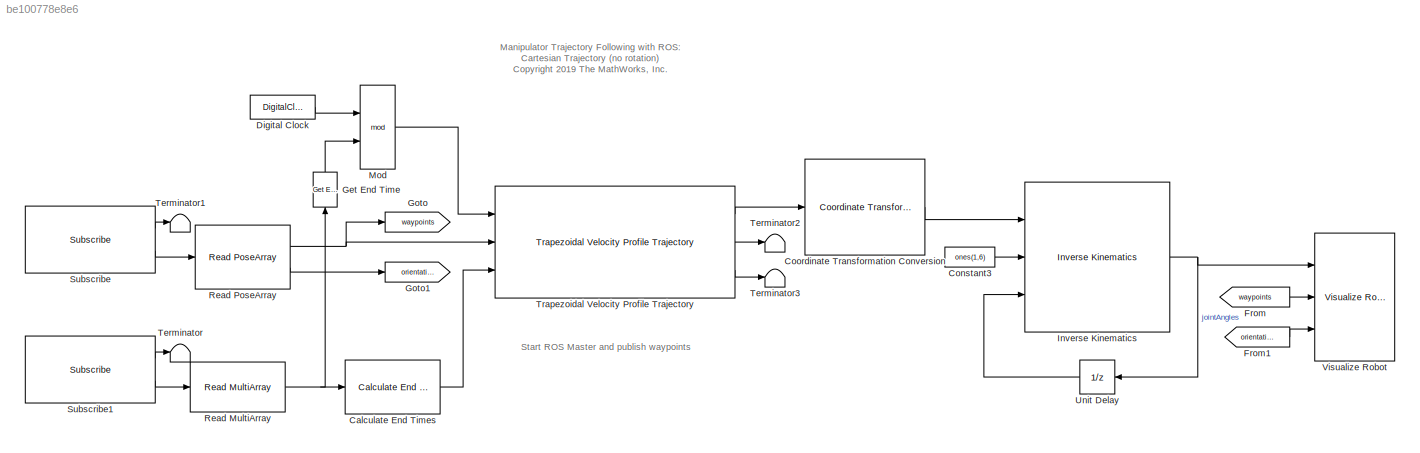
MODEL slx_be100778e8e6
KIND model
CONFIG AbsTol = auto
CONFIG EnableMultiTasking = off
CONFIG FixedStep = auto
CONFIG MaxStep = auto
CONFIG MinStep = auto
CONFIG PreLoadFcn = createWaypointData;
CONFIG RelTol = 1e-3
CONFIG SampleTimeConstraint = Unconstrained
CONFIG Solver = FixedStepAuto
CONFIG SolverName = FixedStepAuto
CONFIG StartTime = 0.0
CONFIG StopTime = inf
BLOCK [Reference] Calculate End Times  REF=trajExampleUtils/Calculate End Times
  Ports = [1, 1]
  SourceBlock = trajExampleUtils/Calculate End Times
  SourceProductBaseCode = SL
  SourceProductName = Simulink
  SourceType = Calculate End Times
BLOCK [Constant] Constant3
  Value = ones(1,6)
  VectorParams1D = off
BLOCK [Reference] Coordinate Transformation Conversion  REF=robotcorelib/Coordinate Transformation Conversion
  Ports = [1, 1]
  SourceBlock = robotcorelib/Coordinate Transformation Conversion
  SourceProductBaseCode = RO
  SourceProductName = Robotics System Toolbox
  SourceType = robotics.slcore.internal.block.CoordinateTransformationConversion
BLOCK [DigitalClock] Digital Clock
  SampleTime = ts
BLOCK [From] From
  GotoTag = waypoints
BLOCK [From] From1
  GotoTag = orientations
BLOCK [Reference] Get End Time  REF=trajExampleUtils/Get End Time
  Ports = [1, 1]
  SourceBlock = trajExampleUtils/Get End Time
  SourceProductBaseCode = SL
  SourceProductName = Simulink
  SourceType = Get End Time
BLOCK [Goto] Goto
  GotoTag = waypoints
BLOCK [Goto] Goto1
  GotoTag = orientations
BLOCK [Reference] Inverse Kinematics  REF=robotmaniplib/Inverse Kinematics
  Ports = [3, 1]
  SourceBlock = robotmaniplib/Inverse Kinematics
  SourceProductBaseCode = RO
  SourceProductName = Robotics System Toolbox
  SourceType = Inverse Kinematics
BLOCK [Math] Mod
  Operator = mod
  Ports = [2, 1]
BLOCK [Reference] Read MultiArray  REF=trajExampleUtils/Read MultiArray
  Ports = [1, 1]
  SourceBlock = trajExampleUtils/Read MultiArray
  SourceProductBaseCode = SL
  SourceProductName = Simulink
  SourceType = Read MultiArray
BLOCK [Reference] Read PoseArray  REF=trajExampleUtils/Read PoseArray
  Ports = [1, 2]
  SourceBlock = trajExampleUtils/Read PoseArray
  SourceType = Read PoseArray
BLOCK [Reference] Subscribe  REF=robotlib/Subscribe
  Ports = [0, 2]
  SourceBlock = robotlib/Subscribe
  SourceProductBaseCode = RO
  SourceProductName = Robotics System Toolbox
  SourceType = ROS Subscribe
BLOCK [Reference] Subscribe1  REF=robotlib/Subscribe
  Ports = [0, 2]
  SourceBlock = robotlib/Subscribe
  SourceProductBaseCode = RO
  SourceProductName = Robotics System Toolbox
  SourceType = ROS Subscribe
BLOCK [Terminator] Terminator
BLOCK [Terminator] Terminator1
BLOCK [Terminator] Terminator2
BLOCK [Terminator] Terminator3
BLOCK [Reference] Trapezoidal Velocity Profile Trajectory  REF=robotcorelib/Trapezoidal Velocity Profile Trajectory
  Ports = [3, 3]
  SourceBlock = robotcorelib/Trapezoidal Velocity Profile Trajectory
  SourceProductBaseCode = RO
  SourceProductName = Robotics System Toolbox
  SourceType = robotics.slcore.internal.block.TrapVelTrajSys
BLOCK [UnitDelay] Unit Delay
  HasFrameUpgradeWarning = on
  InitialCondition = ikInitGuess'
  SampleTime = -1
BLOCK [Reference] Visualize Robot  REF=trajExampleUtils/Visualize Robot
  Ports = [3]
  SourceBlock = trajExampleUtils/Visualize Robot
  SourceType = Visualize Robot
ANNOTATION (root): Start ROS Master and publish waypoints
ANNOTATION (root): Manipulator Trajectory Following with ROS: Cartesian Trajectory (no rotation) <copyright redacted>
LINE Calculate End Times:1 -> Trapezoidal Velocity Profile Trajectory:3
LINE Constant3:1 -> Inverse Kinematics:2
LINE Coordinate Transformation Conversion:1 -> Inverse Kinematics:1
LINE Digital Clock:1 -> Mod:1
LINE From1:1 -> Visualize Robot:3
LINE From:1 -> Visualize Robot:2
LINE Get End Time:1 -> Mod:2
NET Inverse Kinematics:1 -> Unit Delay:1, Visualize Robot:1
LINE Mod:1 -> Trapezoidal Velocity Profile Trajectory:1
NET Read MultiArray:1 -> Calculate End Times:1, Get End Time:1
NET Read PoseArray:1 -> Goto:1, Trapezoidal Velocity Profile Trajectory:2
LINE Read PoseArray:2 -> Goto1:1
LINE Subscribe1:1 -> Terminator:1
LINE Subscribe1:2 -> Read MultiArray:1
LINE Subscribe:1 -> Terminator1:1
LINE Subscribe:2 -> Read PoseArray:1
LINE Trapezoidal Velocity Profile Trajectory:1 -> Coordinate Transformation Conversion:1
LINE Trapezoidal Velocity Profile Trajectory:2 -> Terminator2:1
LINE Trapezoidal Velocity Profile Trajectory:3 -> Terminator3:1
LINE Unit Delay:1 -> Inverse Kinematics:3
note: NET lines group one-source signal fan-out (src -> all destinations, sorted); 1:1 wires keep LINE
